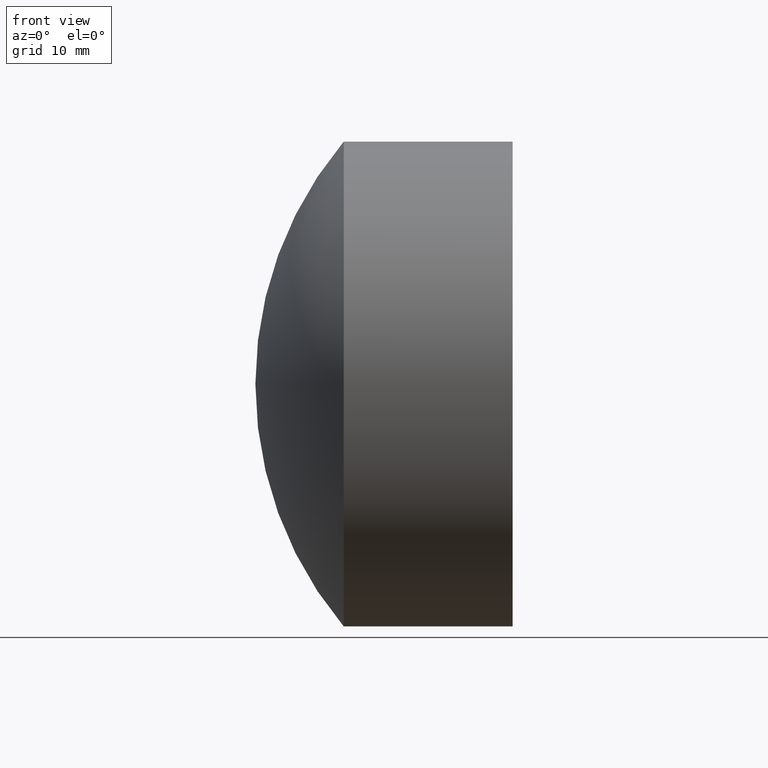
[diagram: clean part render]
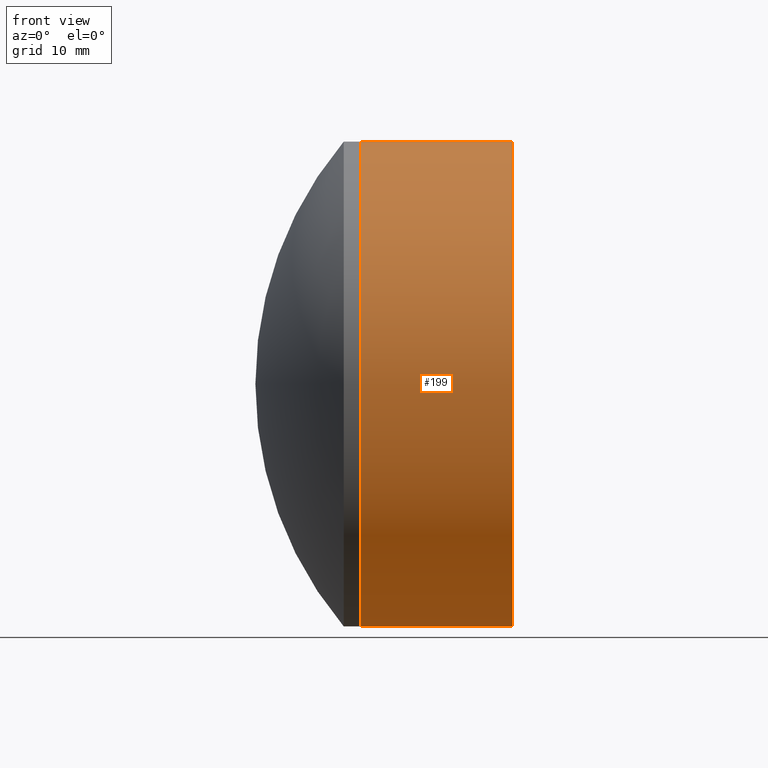
[diagram: same view with one face highlighted and labeled with its STEP entity id]
A machine part, front view. The second image highlights one B-rep face of the part: STEP entity #199.
In plain terms, the highlighted cylindrical surface (partial cylindrical patch) has radius 25.4 mm, axis along (-1, -0, -0).
Its self-contained STEP definition (entity closure, byte-faithful):
#42 = CARTESIAN_POINT ( 'NONE',  ( 104.2995427577912200, 0.0000000000000000000, -25.39999999999995600 ) ) ;
#44 = DIRECTION ( 'NONE',  ( -1.000000000000000000, -0.0000000000000000000, -0.0000000000000000000 ) ) ;
#45 = VERTEX_POINT ( 'NONE', #339 ) ;
#68 = CIRCLE ( 'NONE', #131, 25.39999999999995600 ) ;
#75 = CIRCLE ( 'NONE', #165, 25.39999999999995600 ) ;
#90 = ORIENTED_EDGE ( 'NONE', *, *, #126, .F. ) ;
#93 = CARTESIAN_POINT ( 'NONE',  ( -0.5519199926577972300, 0.0000000000000000000, 0.0000000000000000000 ) ) ;
#126 = EDGE_CURVE ( 'NONE', #174, #243, #286, .T. ) ;
#131 = AXIS2_PLACEMENT_3D ( 'NONE', #205, #44, #180 ) ;
#137 = DIRECTION ( 'NONE',  ( -1.000000000000000000, -0.0000000000000000000, -0.0000000000000000000 ) ) ;
#145 = CARTESIAN_POINT ( 'NONE',  ( 120.2014682904290900, 0.0000000000000000000, -25.39999999999995600 ) ) ;
#151 = DIRECTION ( 'NONE',  ( -1.000000000000000000, -0.0000000000000000000, -0.0000000000000000000 ) ) ;
#158 = ORIENTED_EDGE ( 'NONE', *, *, #249, .T. ) ;
#159 = EDGE_CURVE ( 'NONE', #243, #45, #75, .T. ) ;
#165 = AXIS2_PLACEMENT_3D ( 'NONE', #347, #171, #183 ) ;
#169 = EDGE_CURVE ( 'NONE', #174, #283, #68, .T. ) ;
#171 = DIRECTION ( 'NONE',  ( -1.000000000000000000, -0.0000000000000000000, -0.0000000000000000000 ) ) ;
#174 = VERTEX_POINT ( 'NONE', #145 ) ;
#180 = DIRECTION ( 'NONE',  ( 0.0000000000000000000, 0.0000000000000000000, 1.000000000000000000 ) ) ;
#183 = DIRECTION ( 'NONE',  ( 0.0000000000000000000, 0.0000000000000000000, 1.000000000000000000 ) ) ;
#199 = ADVANCED_FACE ( 'NONE', ( #232 ), #304, .T. ) ;
#205 = CARTESIAN_POINT ( 'NONE',  ( 120.2014682904290900, 0.0000000000000000000, 0.0000000000000000000 ) ) ;
#215 = AXIS2_PLACEMENT_3D ( 'NONE', #93, #151, #229 ) ;
#222 = VECTOR ( 'NONE', #137, 1000.000000000000000 ) ;
#227 = CARTESIAN_POINT ( 'NONE',  ( -0.5519199926577972300, 0.0000000000000000000, 25.39999999999995600 ) ) ;
#229 = DIRECTION ( 'NONE',  ( 0.0000000000000000000, 0.0000000000000000000, 1.000000000000000000 ) ) ;
#231 = VECTOR ( 'NONE', #257, 1000.000000000000000 ) ;
#232 = FACE_OUTER_BOUND ( 'NONE', #312, .T. ) ;
#243 = VERTEX_POINT ( 'NONE', #42 ) ;
#249 = EDGE_CURVE ( 'NONE', #283, #45, #266, .T. ) ;
#257 = DIRECTION ( 'NONE',  ( -1.000000000000000000, -0.0000000000000000000, -0.0000000000000000000 ) ) ;
#266 = LINE ( 'NONE', #227, #231 ) ;
#267 = CARTESIAN_POINT ( 'NONE',  ( -0.5519199926577972300, 3.110602869834272100E-015, -25.39999999999995600 ) ) ;
#270 = ORIENTED_EDGE ( 'NONE', *, *, #169, .T. ) ;
#283 = VERTEX_POINT ( 'NONE', #310 ) ;
#286 = LINE ( 'NONE', #267, #222 ) ;
#294 = ORIENTED_EDGE ( 'NONE', *, *, #159, .F. ) ;
#304 = CYLINDRICAL_SURFACE ( 'NONE', #215, 25.39999999999995600 ) ;
#310 = CARTESIAN_POINT ( 'NONE',  ( 120.2014682904290900, -3.110602869834272500E-015, 25.39999999999995600 ) ) ;
#312 = EDGE_LOOP ( 'NONE', ( #90, #270, #158, #294 ) ) ;
#339 = CARTESIAN_POINT ( 'NONE',  ( 104.2995427577912200, -3.110602869834271700E-015, 25.39999999999997700 ) ) ;
#347 = CARTESIAN_POINT ( 'NONE',  ( 104.2995427577912200, 0.0000000000000000000, 0.0000000000000000000 ) ) ;